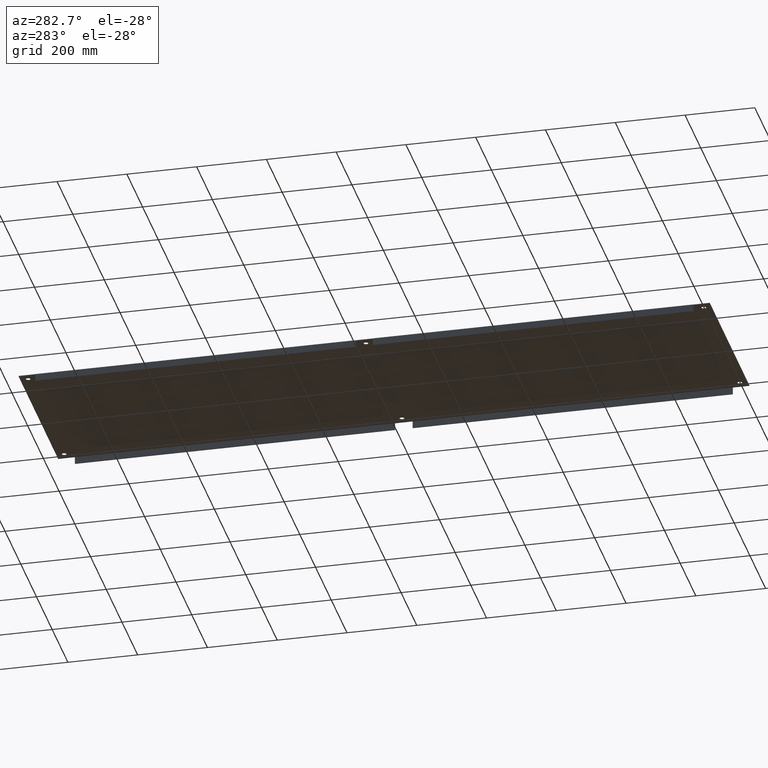
[diagram: clean part render]
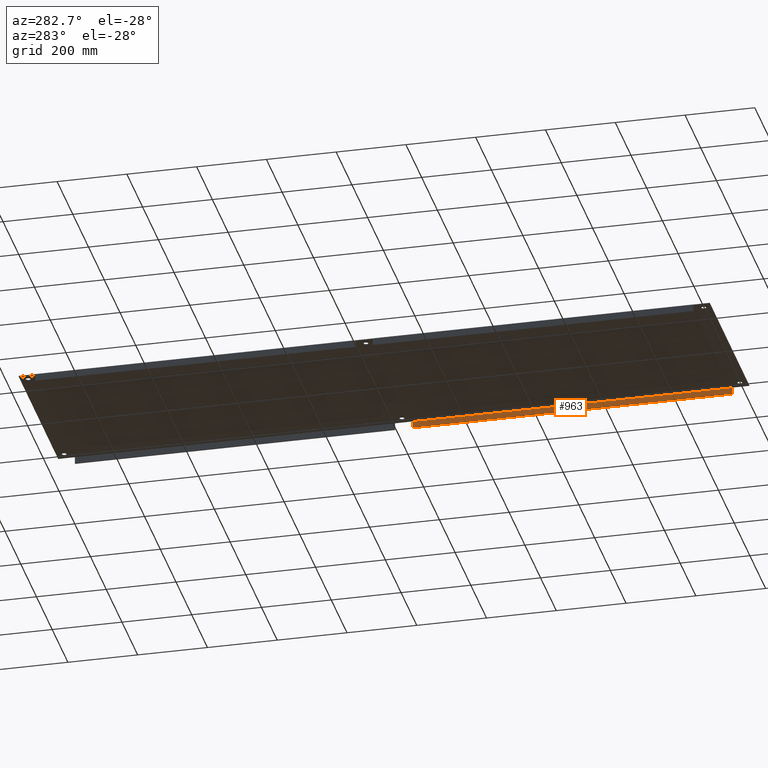
[diagram: same view with one face highlighted and labeled with its STEP entity id]
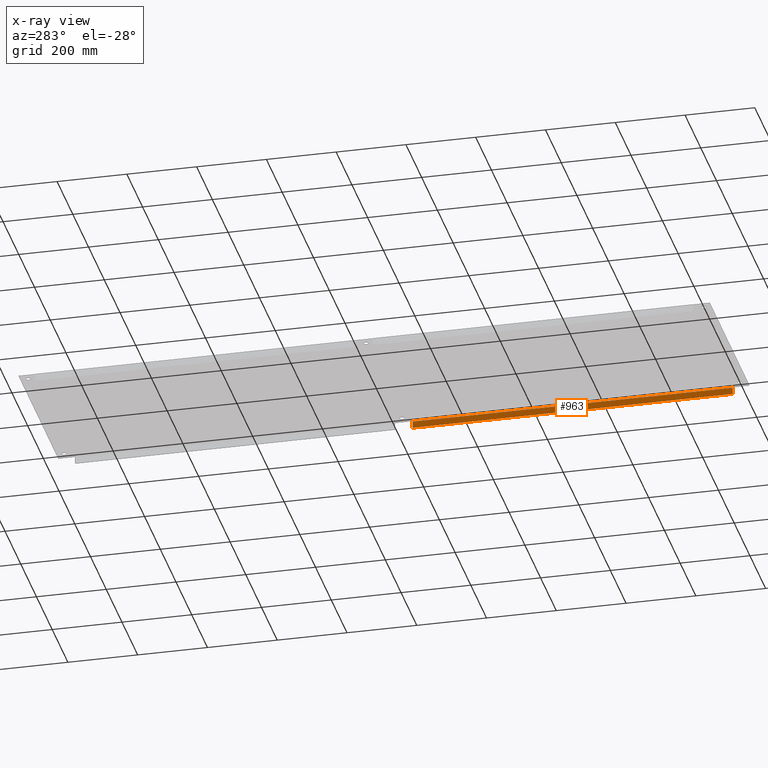
[diagram: x-ray of the same camera — body ghosted, the highlighted face saturated]
A machine part, auxiliary view. The second image highlights one B-rep face of the part: STEP entity #963.
The next image is the same camera in x-ray: the body ghosted, the highlighted face saturated — about 0% of this face is hidden behind the body in this view.
In plain terms, the highlighted planar face has unit normal (-1, 0, 0).
Its self-contained STEP definition (entity closure, byte-faithful):
#668=CARTESIAN_POINT('',(19.906249999999996,38.0,-0.78125));
#669=VERTEX_POINT('',#668);
#676=CARTESIAN_POINT('',(19.906249999999975,38.0,-0.015000000000032));
#677=VERTEX_POINT('',#676);
#678=CARTESIAN_POINT('',(19.906249999999996,37.999999999999993,-0.015000000000032));
#679=DIRECTION('',(0.0,0.0,-1.0));
#680=VECTOR('',#679,0.766249999999968);
#681=LINE('',#678,#680);
#682=EDGE_CURVE('',#677,#669,#681,.T.);
#921=CARTESIAN_POINT('',(19.906249999999989,1.875000000000018,-0.015000000000035));
#922=VERTEX_POINT('',#921);
#923=CARTESIAN_POINT('',(19.906249999999975,38.000000000000007,-0.015000000000032));
#924=DIRECTION('',(0.0,-1.0,0.0));
#925=VECTOR('',#924,36.124999999999986);
#926=LINE('',#923,#925);
#927=EDGE_CURVE('',#677,#922,#926,.T.);
#940=CARTESIAN_POINT('',(19.906249999999986,76.125000000000014,-0.78125));
#941=DIRECTION('',(-1.0,0.0,0.0));
#942=DIRECTION('',(0.0,0.0,1.0));
#943=AXIS2_PLACEMENT_3D('',#940,#941,#942);
#944=PLANE('',#943);
#945=ORIENTED_EDGE('',*,*,#682,.T.);
#946=CARTESIAN_POINT('',(19.90625,1.875000000000007,-0.78125));
#947=VERTEX_POINT('',#946);
#948=CARTESIAN_POINT('',(19.906249999999993,38.000000000000007,-0.78125));
#949=DIRECTION('',(0.0,-1.0,0.0));
#950=VECTOR('',#949,36.124999999999993);
#951=LINE('',#948,#950);
#952=EDGE_CURVE('',#669,#947,#951,.T.);
#953=ORIENTED_EDGE('',*,*,#952,.T.);
#954=CARTESIAN_POINT('',(19.90625,1.874999999999996,-0.78125));
#955=DIRECTION('',(0.0,0.0,1.0));
#956=VECTOR('',#955,0.76625);
#957=LINE('',#954,#956);
#958=EDGE_CURVE('',#947,#922,#957,.T.);
#959=ORIENTED_EDGE('',*,*,#958,.T.);
#960=ORIENTED_EDGE('',*,*,#927,.F.);
#961=EDGE_LOOP('',(#945,#953,#959,#960));
#962=FACE_OUTER_BOUND('',#961,.T.);
#963=ADVANCED_FACE('',(#962),#944,.T.);